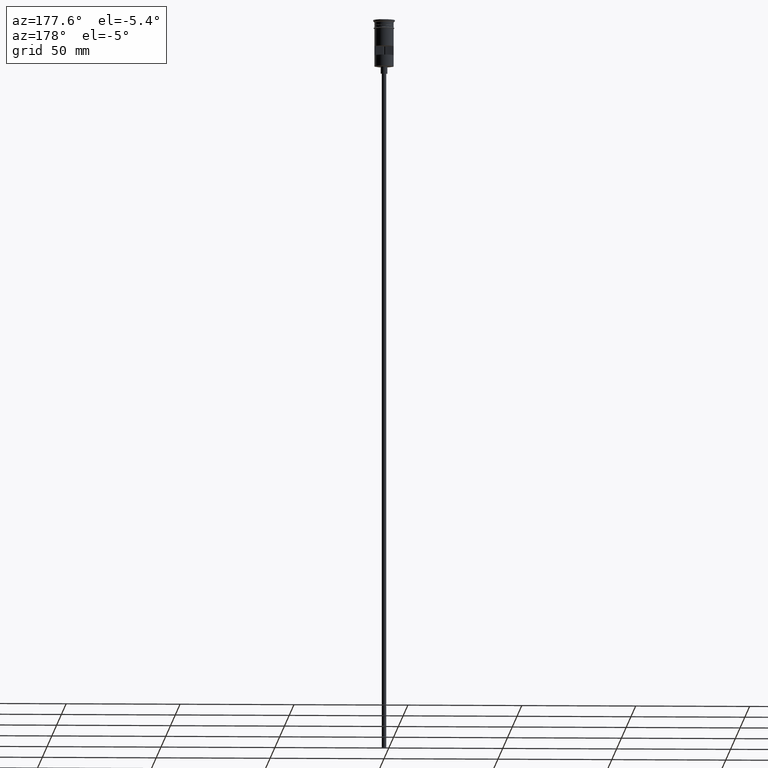
[diagram: clean part render]
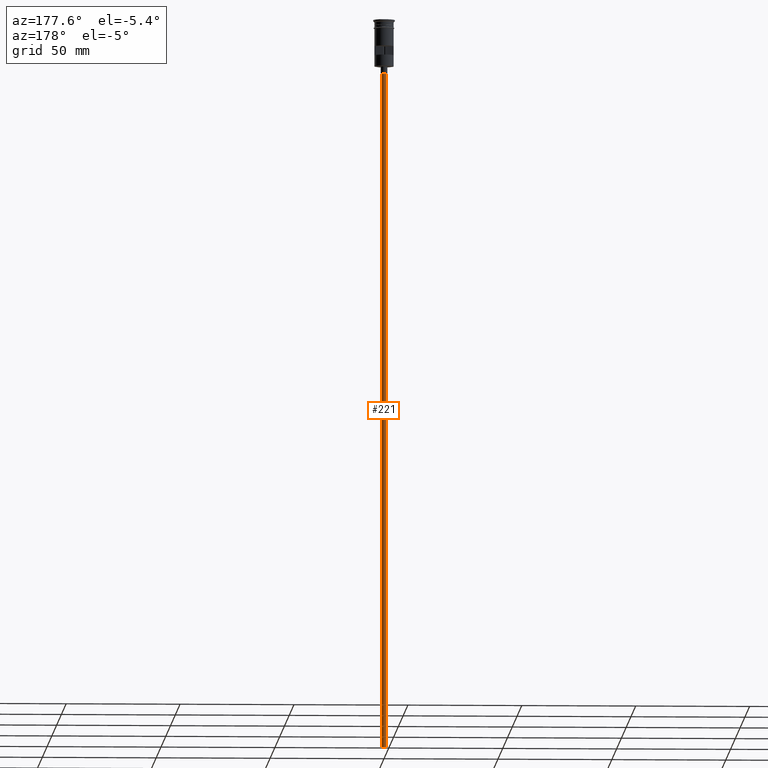
[diagram: same view with one face highlighted and labeled with its STEP entity id]
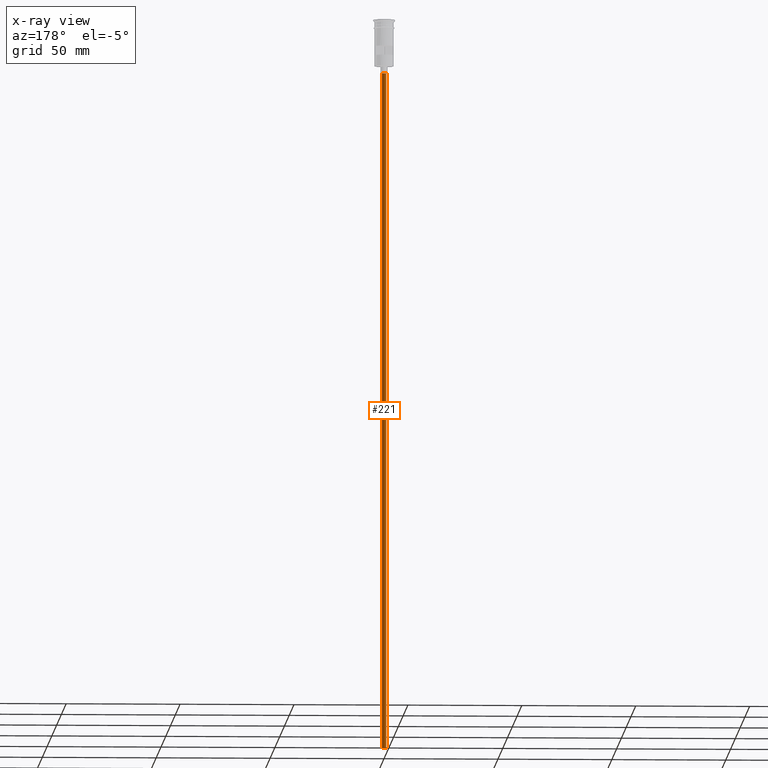
[diagram: x-ray of the same camera — body ghosted, the highlighted face saturated]
A machine part, auxiliary view. The second image highlights one B-rep face of the part: STEP entity #221.
The next image is the same camera in x-ray: the body ghosted, the highlighted face saturated — about 0% of this face is hidden behind the body in this view.
In plain terms, the highlighted cylindrical surface (edge-blend (fillet) strip) has radius 1 mm, axis along (-0, -0, 1).
Its self-contained STEP definition (entity closure, byte-faithful):
#4 = DIRECTION ( 'NONE',  ( -0.000000000000000000, -0.000000000000000000, 1.000000000000000000 ) ) ;
#12 = VERTEX_POINT ( 'NONE', #114 ) ;
#41 = ORIENTED_EDGE ( 'NONE', *, *, #523, .T. ) ;
#114 = CARTESIAN_POINT ( 'NONE',  ( -0.9999999999999997780, 1.224646799147352961E-16, -23.49999999999999645 ) ) ;
#141 = DIRECTION ( 'NONE',  ( -0.000000000000000000, -0.000000000000000000, 1.000000000000000000 ) ) ;
#221 = ADVANCED_FACE ( 'NONE', ( #1118 ), #615, .T. ) ;
#230 = ORIENTED_EDGE ( 'NONE', *, *, #1012, .T. ) ;
#264 = LINE ( 'NONE', #1253, #1271 ) ;
#325 = VERTEX_POINT ( 'NONE', #822 ) ;
#381 = DIRECTION ( 'NONE',  ( 1.000000000000000000, 0.000000000000000000, 0.000000000000000000 ) ) ;
#385 = VECTOR ( 'NONE', #817, 1000.000000000000000 ) ;
#437 = CIRCLE ( 'NONE', #1191, 0.9999999999999997780 ) ;
#523 = EDGE_CURVE ( 'NONE', #12, #844, #437, .T. ) ;
#575 = AXIS2_PLACEMENT_3D ( 'NONE', #1110, #4, #381 ) ;
#615 = CYLINDRICAL_SURFACE ( 'NONE', #575, 0.9999999999999997780 ) ;
#675 = ORIENTED_EDGE ( 'NONE', *, *, #1246, .F. ) ;
#786 = DIRECTION ( 'NONE',  ( -1.000000000000000000, 0.000000000000000000, 0.000000000000000000 ) ) ;
#804 = CARTESIAN_POINT ( 'NONE',  ( -0.9999999999999997780, 1.224646799147352961E-16, -320.5000000000000000 ) ) ;
#817 = DIRECTION ( 'NONE',  ( -0.000000000000000000, -0.000000000000000000, 1.000000000000000000 ) ) ;
#822 = CARTESIAN_POINT ( 'NONE',  ( 0.9999999999999997780, 0.000000000000000000, -320.5000000000000000 ) ) ;
#844 = VERTEX_POINT ( 'NONE', #845 ) ;
#845 = CARTESIAN_POINT ( 'NONE',  ( 0.9999999999999997780, 0.000000000000000000, -23.49999999999999645 ) ) ;
#883 = CARTESIAN_POINT ( 'NONE',  ( 0.000000000000000000, 0.000000000000000000, -320.5000000000000000 ) ) ;
#934 = EDGE_CURVE ( 'NONE', #325, #844, #264, .T. ) ;
#1012 = EDGE_CURVE ( 'NONE', #1425, #12, #1420, .T. ) ;
#1013 = CIRCLE ( 'NONE', #1272, 0.9999999999999997780 ) ;
#1110 = CARTESIAN_POINT ( 'NONE',  ( 0.000000000000000000, 0.000000000000000000, -320.5000000000000000 ) ) ;
#1118 = FACE_OUTER_BOUND ( 'NONE', #1467, .T. ) ;
#1152 = CARTESIAN_POINT ( 'NONE',  ( 0.000000000000000000, 0.000000000000000000, -23.49999999999999645 ) ) ;
#1191 = AXIS2_PLACEMENT_3D ( 'NONE', #1152, #1279, #786 ) ;
#1246 = EDGE_CURVE ( 'NONE', #1425, #325, #1013, .T. ) ;
#1253 = CARTESIAN_POINT ( 'NONE',  ( 0.9999999999999997780, 0.000000000000000000, -320.5000000000000000 ) ) ;
#1271 = VECTOR ( 'NONE', #141, 1000.000000000000000 ) ;
#1272 = AXIS2_PLACEMENT_3D ( 'NONE', #883, #1603, #1375 ) ;
#1279 = DIRECTION ( 'NONE',  ( 0.000000000000000000, 0.000000000000000000, -1.000000000000000000 ) ) ;
#1318 = CARTESIAN_POINT ( 'NONE',  ( -0.9999999999999997780, 1.224646799147352961E-16, -320.5000000000000000 ) ) ;
#1375 = DIRECTION ( 'NONE',  ( -1.000000000000000000, 0.000000000000000000, 0.000000000000000000 ) ) ;
#1420 = LINE ( 'NONE', #804, #385 ) ;
#1425 = VERTEX_POINT ( 'NONE', #1318 ) ;
#1467 = EDGE_LOOP ( 'NONE', ( #675, #230, #41, #1516 ) ) ;
#1516 = ORIENTED_EDGE ( 'NONE', *, *, #934, .F. ) ;
#1603 = DIRECTION ( 'NONE',  ( 0.000000000000000000, 0.000000000000000000, -1.000000000000000000 ) ) ;